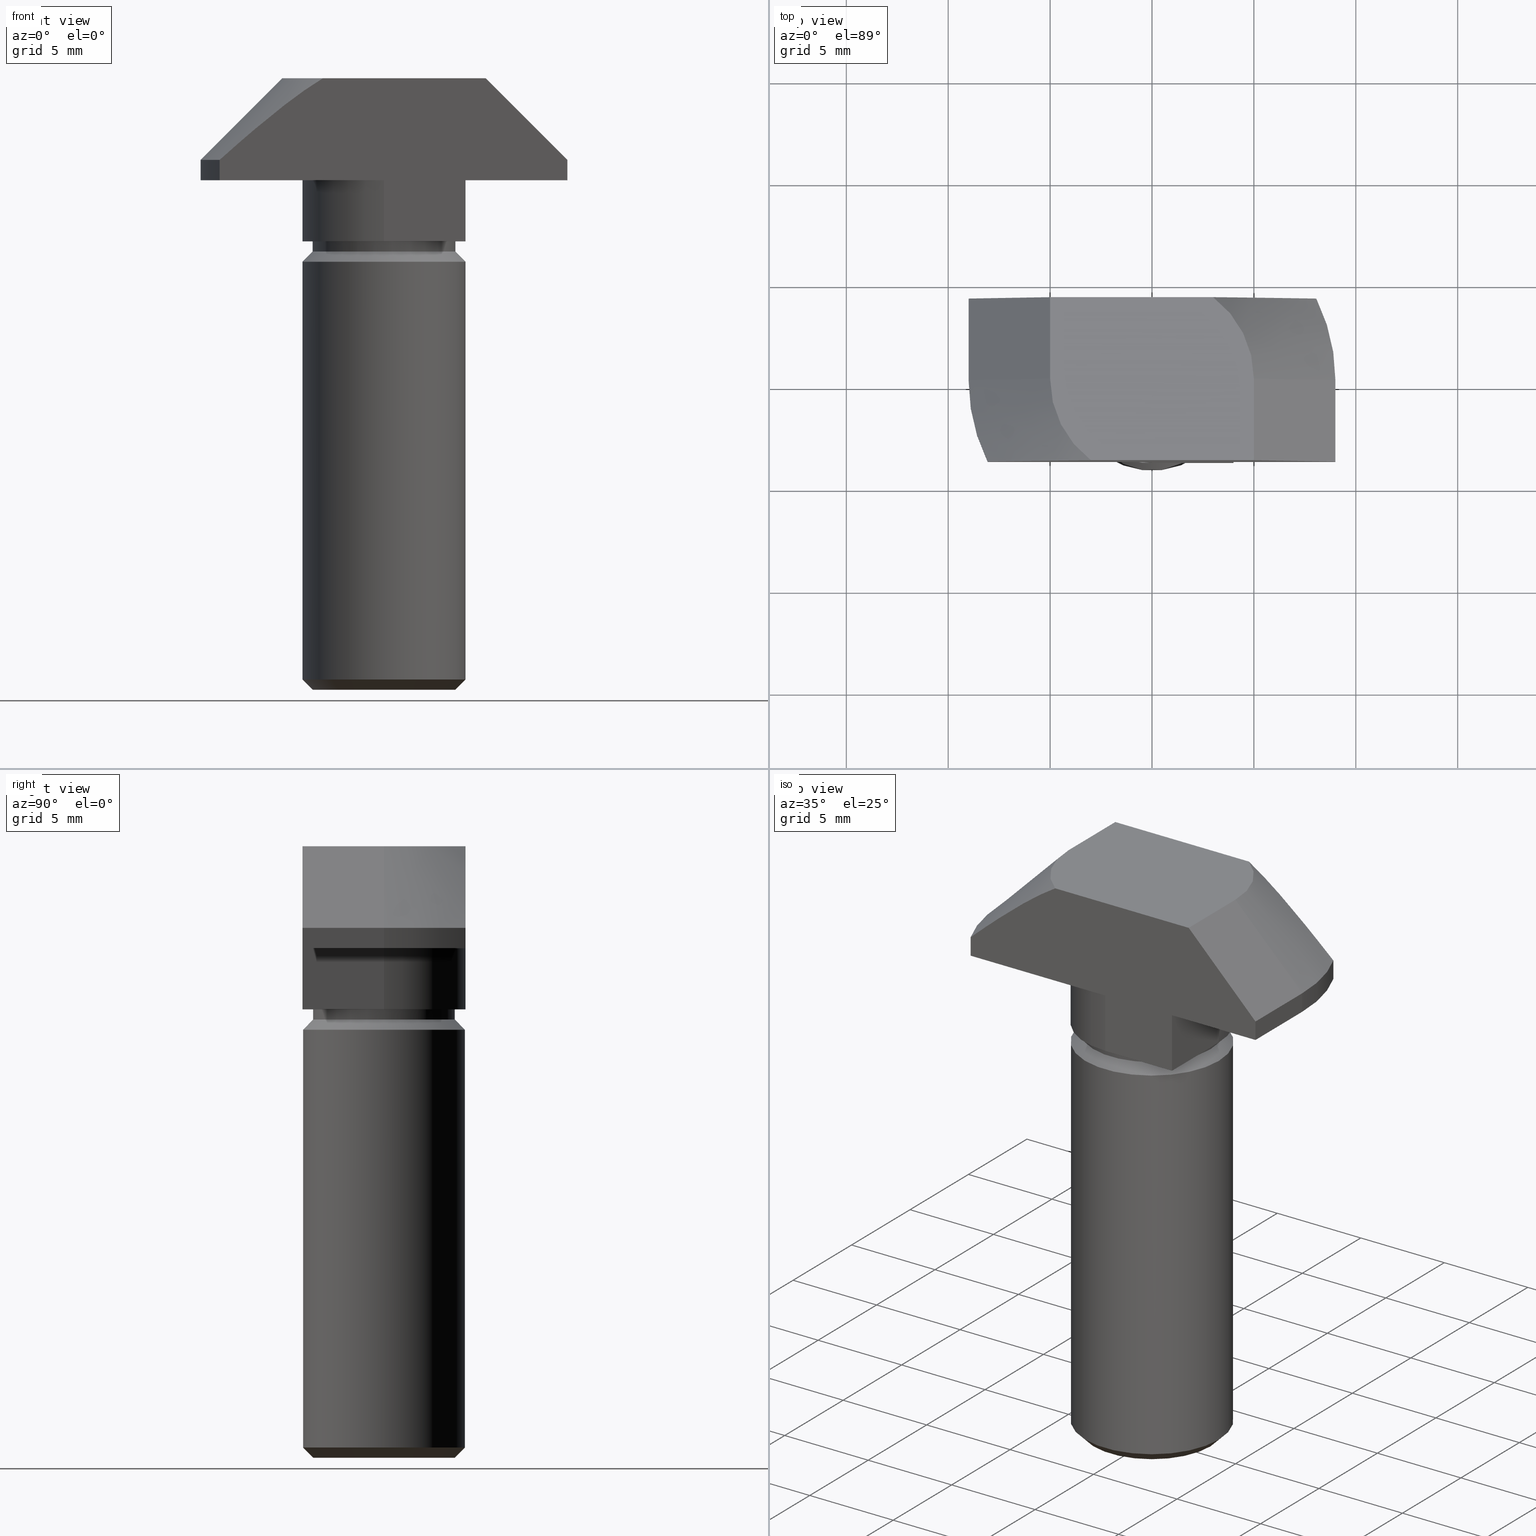
[diagram: canonical four-view strip — front | top / right | iso, engineering-drawing reading convention]
A machine part, canonical four-view strip (front | top / right | iso — engineering-drawing reading convention). The complete STEP part file that produces these views, byte-faithful:
ISO-10303-21;
HEADER;
/* Generated by software containing ST-Developer
 * from STEP Tools, Inc. (www.steptools.com) 
 */

FILE_DESCRIPTION(
/* description */ (''),
/* implementation_level */ '2;1');

FILE_NAME(
/* name */ 
'C:\\Users\\tecnico7\\Desktop\\NUOVI DISEGNI 3D\\VITE M8 L=25 Cava 10.
stp',
/* time_stamp */ '2022-12-02T11:06:05+01:00',
/* author */ ('tecnico7'),
/* organization */ (''),
/* preprocessor_version */ 'ST-DEVELOPER v18.1',
/* originating_system */ 'Autodesk Inventor 2022',
/* authorisation */ '');

FILE_SCHEMA (('AUTOMOTIVE_DESIGN { 1 0 10303 214 3 1 1 }'));
ENDSEC;

DATA;
#10=MECHANICAL_DESIGN_GEOMETRIC_PRESENTATION_REPRESENTATION('',(#13),#700);
#11=SHAPE_REPRESENTATION_RELATIONSHIP('SRR','None',#707,#12);
#12=ADVANCED_BREP_SHAPE_REPRESENTATION('',(#14),#699);
#13=STYLED_ITEM('',(#716),#14);
#14=MANIFOLD_SOLID_BREP('Solido1',#402);
#15=(
BOUNDED_CURVE()
B_SPLINE_CURVE(2,(#651,#652,#653),.UNSPECIFIED.,.F.,.F.)
B_SPLINE_CURVE_WITH_KNOTS((3,3),(0.,0.645810133031387),.UNSPECIFIED.)
CURVE()
GEOMETRIC_REPRESENTATION_ITEM()
RATIONAL_B_SPLINE_CURVE((1.,1.07257323111151,1.))
REPRESENTATION_ITEM('')
);
#16=(
BOUNDED_CURVE()
B_SPLINE_CURVE(2,(#670,#671,#672),.UNSPECIFIED.,.F.,.F.)
B_SPLINE_CURVE_WITH_KNOTS((3,3),(0.,0.645810133031388),.UNSPECIFIED.)
CURVE()
GEOMETRIC_REPRESENTATION_ITEM()
RATIONAL_B_SPLINE_CURVE((1.,1.07257323111155,1.))
REPRESENTATION_ITEM('')
);
#17=FACE_BOUND('',#70,.T.);
#18=PLANE('',#432);
#19=PLANE('',#435);
#20=PLANE('',#439);
#21=PLANE('',#443);
#22=PLANE('',#444);
#23=PLANE('',#446);
#24=PLANE('',#456);
#25=PLANE('',#457);
#26=PLANE('',#458);
#27=PLANE('',#459);
#28=PLANE('',#460);
#29=PLANE('',#461);
#30=PLANE('',#462);
#31=CYLINDRICAL_SURFACE('',#428,4.);
#32=CYLINDRICAL_SURFACE('',#433,3.5);
#33=CYLINDRICAL_SURFACE('',#436,4.00000000000001);
#34=CYLINDRICAL_SURFACE('',#440,3.99999999999999);
#35=CYLINDRICAL_SURFACE('',#451,9.);
#36=CYLINDRICAL_SURFACE('',#452,9.);
#37=FACE_OUTER_BOUND('',#60,.T.);
#38=FACE_OUTER_BOUND('',#61,.T.);
#39=FACE_OUTER_BOUND('',#62,.T.);
#40=FACE_OUTER_BOUND('',#63,.T.);
#41=FACE_OUTER_BOUND('',#64,.T.);
#42=FACE_OUTER_BOUND('',#65,.T.);
#43=FACE_OUTER_BOUND('',#66,.T.);
#44=FACE_OUTER_BOUND('',#67,.T.);
#45=FACE_OUTER_BOUND('',#68,.T.);
#46=FACE_OUTER_BOUND('',#69,.T.);
#47=FACE_OUTER_BOUND('',#71,.T.);
#48=FACE_OUTER_BOUND('',#72,.T.);
#49=FACE_OUTER_BOUND('',#73,.T.);
#50=FACE_OUTER_BOUND('',#74,.T.);
#51=FACE_OUTER_BOUND('',#75,.T.);
#52=FACE_OUTER_BOUND('',#76,.T.);
#53=FACE_OUTER_BOUND('',#77,.T.);
#54=FACE_OUTER_BOUND('',#78,.T.);
#55=FACE_OUTER_BOUND('',#79,.T.);
#56=FACE_OUTER_BOUND('',#80,.T.);
#57=FACE_OUTER_BOUND('',#81,.T.);
#58=FACE_OUTER_BOUND('',#82,.T.);
#59=FACE_OUTER_BOUND('',#83,.T.);
#60=EDGE_LOOP('',(#265,#266,#267,#268));
#61=EDGE_LOOP('',(#269,#270,#271,#272));
#62=EDGE_LOOP('',(#273,#274,#275,#276));
#63=EDGE_LOOP('',(#277));
#64=EDGE_LOOP('',(#278,#279,#280,#281));
#65=EDGE_LOOP('',(#282,#283,#284,#285));
#66=EDGE_LOOP('',(#286,#287,#288,#289));
#67=EDGE_LOOP('',(#290,#291,#292,#293));
#68=EDGE_LOOP('',(#294,#295,#296,#297));
#69=EDGE_LOOP('',(#298,#299,#300,#301,#302,#303));
#70=EDGE_LOOP('',(#304));
#71=EDGE_LOOP('',(#305,#306,#307,#308,#309,#310));
#72=EDGE_LOOP('',(#311,#312,#313,#314,#315,#316));
#73=EDGE_LOOP('',(#317,#318,#319,#320));
#74=EDGE_LOOP('',(#321,#322,#323,#324));
#75=EDGE_LOOP('',(#325,#326,#327,#328));
#76=EDGE_LOOP('',(#329,#330,#331,#332));
#77=EDGE_LOOP('',(#333,#334,#335,#336));
#78=EDGE_LOOP('',(#337,#338,#339,#340));
#79=EDGE_LOOP('',(#341,#342,#343,#344));
#80=EDGE_LOOP('',(#345,#346,#347,#348));
#81=EDGE_LOOP('',(#349,#350,#351,#352,#353,#354,#355,#356,#357,#358));
#82=EDGE_LOOP('',(#359,#360,#361,#362,#363,#364));
#83=EDGE_LOOP('',(#365,#366,#367,#368,#369,#370,#371,#372,#373,#374));
#84=LINE('',#584,#122);
#85=LINE('',#589,#123);
#86=LINE('',#593,#124);
#87=LINE('',#597,#125);
#88=LINE('',#602,#126);
#89=LINE('',#604,#127);
#90=LINE('',#606,#128);
#91=LINE('',#607,#129);
#92=LINE('',#613,#130);
#93=LINE('',#617,#131);
#94=LINE('',#619,#132);
#95=LINE('',#621,#133);
#96=LINE('',#622,#134);
#97=LINE('',#628,#135);
#98=LINE('',#630,#136);
#99=LINE('',#631,#137);
#100=LINE('',#634,#138);
#101=LINE('',#638,#139);
#102=LINE('',#639,#140);
#103=LINE('',#642,#141);
#104=LINE('',#646,#142);
#105=LINE('',#647,#143);
#106=LINE('',#657,#144);
#107=LINE('',#660,#145);
#108=LINE('',#661,#146);
#109=LINE('',#664,#147);
#110=LINE('',#667,#148);
#111=LINE('',#675,#149);
#112=LINE('',#678,#150);
#113=LINE('',#679,#151);
#114=LINE('',#682,#152);
#115=LINE('',#683,#153);
#116=LINE('',#686,#154);
#117=LINE('',#687,#155);
#118=LINE('',#690,#156);
#119=LINE('',#691,#157);
#120=LINE('',#693,#158);
#121=LINE('',#695,#159);
#122=VECTOR('',#469,3.75);
#123=VECTOR('',#476,4.);
#124=VECTOR('',#481,3.75);
#125=VECTOR('',#486,3.5);
#126=VECTOR('',#491,10.);
#127=VECTOR('',#492,10.);
#128=VECTOR('',#493,10.);
#129=VECTOR('',#494,10.);
#130=VECTOR('',#501,10.);
#131=VECTOR('',#504,10.);
#132=VECTOR('',#505,10.);
#133=VECTOR('',#506,10.);
#134=VECTOR('',#507,10.);
#135=VECTOR('',#514,10.);
#136=VECTOR('',#517,10.);
#137=VECTOR('',#518,10.);
#138=VECTOR('',#521,10.);
#139=VECTOR('',#524,10.);
#140=VECTOR('',#525,10.);
#141=VECTOR('',#528,10.);
#142=VECTOR('',#531,10.);
#143=VECTOR('',#532,10.);
#144=VECTOR('',#537,10.);
#145=VECTOR('',#542,10.);
#146=VECTOR('',#543,10.);
#147=VECTOR('',#546,10.);
#148=VECTOR('',#549,10.);
#149=VECTOR('',#554,10.);
#150=VECTOR('',#557,10.);
#151=VECTOR('',#558,10.);
#152=VECTOR('',#561,10.);
#153=VECTOR('',#562,10.);
#154=VECTOR('',#565,10.);
#155=VECTOR('',#566,10.);
#156=VECTOR('',#569,10.);
#157=VECTOR('',#570,10.);
#158=VECTOR('',#573,10.);
#159=VECTOR('',#576,10.);
#160=CIRCLE('',#426,3.5);
#161=CIRCLE('',#427,4.);
#162=CIRCLE('',#429,4.);
#163=CIRCLE('',#431,3.5);
#164=CIRCLE('',#434,3.5);
#165=CIRCLE('',#437,4.00000000000001);
#166=CIRCLE('',#438,4.00000000000001);
#167=CIRCLE('',#441,3.99999999999999);
#168=CIRCLE('',#442,3.99999999999999);
#169=CIRCLE('',#445,9.);
#170=CIRCLE('',#447,9.);
#171=CIRCLE('',#449,5.);
#172=CIRCLE('',#450,9.);
#173=CIRCLE('',#453,9.);
#174=CIRCLE('',#455,5.);
#175=VERTEX_POINT('',#581);
#176=VERTEX_POINT('',#583);
#177=VERTEX_POINT('',#587);
#178=VERTEX_POINT('',#591);
#179=VERTEX_POINT('',#596);
#180=VERTEX_POINT('',#600);
#181=VERTEX_POINT('',#601);
#182=VERTEX_POINT('',#603);
#183=VERTEX_POINT('',#605);
#184=VERTEX_POINT('',#609);
#185=VERTEX_POINT('',#611);
#186=VERTEX_POINT('',#615);
#187=VERTEX_POINT('',#616);
#188=VERTEX_POINT('',#618);
#189=VERTEX_POINT('',#620);
#190=VERTEX_POINT('',#624);
#191=VERTEX_POINT('',#626);
#192=VERTEX_POINT('',#633);
#193=VERTEX_POINT('',#635);
#194=VERTEX_POINT('',#637);
#195=VERTEX_POINT('',#641);
#196=VERTEX_POINT('',#643);
#197=VERTEX_POINT('',#645);
#198=VERTEX_POINT('',#649);
#199=VERTEX_POINT('',#650);
#200=VERTEX_POINT('',#654);
#201=VERTEX_POINT('',#656);
#202=VERTEX_POINT('',#663);
#203=VERTEX_POINT('',#665);
#204=VERTEX_POINT('',#669);
#205=VERTEX_POINT('',#673);
#206=VERTEX_POINT('',#677);
#207=VERTEX_POINT('',#681);
#208=VERTEX_POINT('',#685);
#209=VERTEX_POINT('',#689);
#210=EDGE_CURVE('',#175,#175,#160,.T.);
#211=EDGE_CURVE('',#175,#176,#84,.T.);
#212=EDGE_CURVE('',#176,#176,#161,.T.);
#213=EDGE_CURVE('',#177,#177,#162,.T.);
#214=EDGE_CURVE('',#177,#176,#85,.T.);
#215=EDGE_CURVE('',#178,#178,#163,.T.);
#216=EDGE_CURVE('',#178,#177,#86,.T.);
#217=EDGE_CURVE('',#175,#179,#87,.T.);
#218=EDGE_CURVE('',#179,#179,#164,.T.);
#219=EDGE_CURVE('',#180,#181,#88,.T.);
#220=EDGE_CURVE('',#180,#182,#89,.T.);
#221=EDGE_CURVE('',#183,#182,#90,.T.);
#222=EDGE_CURVE('',#181,#183,#91,.T.);
#223=EDGE_CURVE('',#181,#184,#165,.T.);
#224=EDGE_CURVE('',#185,#183,#166,.T.);
#225=EDGE_CURVE('',#184,#185,#92,.T.);
#226=EDGE_CURVE('',#186,#187,#93,.T.);
#227=EDGE_CURVE('',#186,#188,#94,.T.);
#228=EDGE_CURVE('',#189,#188,#95,.T.);
#229=EDGE_CURVE('',#187,#189,#96,.T.);
#230=EDGE_CURVE('',#187,#190,#167,.T.);
#231=EDGE_CURVE('',#191,#189,#168,.T.);
#232=EDGE_CURVE('',#190,#191,#97,.T.);
#233=EDGE_CURVE('',#182,#191,#98,.T.);
#234=EDGE_CURVE('',#188,#185,#99,.T.);
#235=EDGE_CURVE('',#192,#184,#100,.T.);
#236=EDGE_CURVE('',#192,#193,#169,.T.);
#237=EDGE_CURVE('',#193,#194,#101,.T.);
#238=EDGE_CURVE('',#180,#194,#102,.T.);
#239=EDGE_CURVE('',#195,#190,#103,.T.);
#240=EDGE_CURVE('',#195,#196,#170,.T.);
#241=EDGE_CURVE('',#196,#197,#104,.T.);
#242=EDGE_CURVE('',#186,#197,#105,.T.);
#243=EDGE_CURVE('',#198,#199,#15,.T.);
#244=EDGE_CURVE('',#200,#198,#171,.T.);
#245=EDGE_CURVE('',#200,#201,#106,.T.);
#246=EDGE_CURVE('',#201,#199,#172,.T.);
#247=EDGE_CURVE('',#199,#195,#107,.T.);
#248=EDGE_CURVE('',#201,#196,#108,.T.);
#249=EDGE_CURVE('',#202,#192,#109,.T.);
#250=EDGE_CURVE('',#203,#202,#173,.T.);
#251=EDGE_CURVE('',#203,#193,#110,.T.);
#252=EDGE_CURVE('',#204,#202,#16,.T.);
#253=EDGE_CURVE('',#205,#204,#174,.T.);
#254=EDGE_CURVE('',#205,#203,#111,.T.);
#255=EDGE_CURVE('',#201,#206,#112,.T.);
#256=EDGE_CURVE('',#197,#206,#113,.T.);
#257=EDGE_CURVE('',#200,#207,#114,.T.);
#258=EDGE_CURVE('',#206,#207,#115,.T.);
#259=EDGE_CURVE('',#208,#203,#116,.T.);
#260=EDGE_CURVE('',#194,#208,#117,.T.);
#261=EDGE_CURVE('',#209,#205,#118,.T.);
#262=EDGE_CURVE('',#208,#209,#119,.T.);
#263=EDGE_CURVE('',#207,#204,#120,.T.);
#264=EDGE_CURVE('',#209,#198,#121,.T.);
#265=ORIENTED_EDGE('',*,*,#210,.T.);
#266=ORIENTED_EDGE('',*,*,#211,.T.);
#267=ORIENTED_EDGE('',*,*,#212,.T.);
#268=ORIENTED_EDGE('',*,*,#211,.F.);
#269=ORIENTED_EDGE('',*,*,#213,.F.);
#270=ORIENTED_EDGE('',*,*,#214,.T.);
#271=ORIENTED_EDGE('',*,*,#212,.F.);
#272=ORIENTED_EDGE('',*,*,#214,.F.);
#273=ORIENTED_EDGE('',*,*,#215,.T.);
#274=ORIENTED_EDGE('',*,*,#216,.T.);
#275=ORIENTED_EDGE('',*,*,#213,.T.);
#276=ORIENTED_EDGE('',*,*,#216,.F.);
#277=ORIENTED_EDGE('',*,*,#215,.F.);
#278=ORIENTED_EDGE('',*,*,#210,.F.);
#279=ORIENTED_EDGE('',*,*,#217,.T.);
#280=ORIENTED_EDGE('',*,*,#218,.F.);
#281=ORIENTED_EDGE('',*,*,#217,.F.);
#282=ORIENTED_EDGE('',*,*,#219,.F.);
#283=ORIENTED_EDGE('',*,*,#220,.T.);
#284=ORIENTED_EDGE('',*,*,#221,.F.);
#285=ORIENTED_EDGE('',*,*,#222,.F.);
#286=ORIENTED_EDGE('',*,*,#223,.F.);
#287=ORIENTED_EDGE('',*,*,#222,.T.);
#288=ORIENTED_EDGE('',*,*,#224,.F.);
#289=ORIENTED_EDGE('',*,*,#225,.F.);
#290=ORIENTED_EDGE('',*,*,#226,.F.);
#291=ORIENTED_EDGE('',*,*,#227,.T.);
#292=ORIENTED_EDGE('',*,*,#228,.F.);
#293=ORIENTED_EDGE('',*,*,#229,.F.);
#294=ORIENTED_EDGE('',*,*,#230,.F.);
#295=ORIENTED_EDGE('',*,*,#229,.T.);
#296=ORIENTED_EDGE('',*,*,#231,.F.);
#297=ORIENTED_EDGE('',*,*,#232,.F.);
#298=ORIENTED_EDGE('',*,*,#233,.T.);
#299=ORIENTED_EDGE('',*,*,#231,.T.);
#300=ORIENTED_EDGE('',*,*,#228,.T.);
#301=ORIENTED_EDGE('',*,*,#234,.T.);
#302=ORIENTED_EDGE('',*,*,#224,.T.);
#303=ORIENTED_EDGE('',*,*,#221,.T.);
#304=ORIENTED_EDGE('',*,*,#218,.T.);
#305=ORIENTED_EDGE('',*,*,#223,.T.);
#306=ORIENTED_EDGE('',*,*,#235,.F.);
#307=ORIENTED_EDGE('',*,*,#236,.T.);
#308=ORIENTED_EDGE('',*,*,#237,.T.);
#309=ORIENTED_EDGE('',*,*,#238,.F.);
#310=ORIENTED_EDGE('',*,*,#219,.T.);
#311=ORIENTED_EDGE('',*,*,#226,.T.);
#312=ORIENTED_EDGE('',*,*,#230,.T.);
#313=ORIENTED_EDGE('',*,*,#239,.F.);
#314=ORIENTED_EDGE('',*,*,#240,.T.);
#315=ORIENTED_EDGE('',*,*,#241,.T.);
#316=ORIENTED_EDGE('',*,*,#242,.F.);
#317=ORIENTED_EDGE('',*,*,#243,.F.);
#318=ORIENTED_EDGE('',*,*,#244,.F.);
#319=ORIENTED_EDGE('',*,*,#245,.T.);
#320=ORIENTED_EDGE('',*,*,#246,.T.);
#321=ORIENTED_EDGE('',*,*,#247,.F.);
#322=ORIENTED_EDGE('',*,*,#246,.F.);
#323=ORIENTED_EDGE('',*,*,#248,.T.);
#324=ORIENTED_EDGE('',*,*,#240,.F.);
#325=ORIENTED_EDGE('',*,*,#249,.F.);
#326=ORIENTED_EDGE('',*,*,#250,.F.);
#327=ORIENTED_EDGE('',*,*,#251,.T.);
#328=ORIENTED_EDGE('',*,*,#236,.F.);
#329=ORIENTED_EDGE('',*,*,#252,.F.);
#330=ORIENTED_EDGE('',*,*,#253,.F.);
#331=ORIENTED_EDGE('',*,*,#254,.T.);
#332=ORIENTED_EDGE('',*,*,#250,.T.);
#333=ORIENTED_EDGE('',*,*,#248,.F.);
#334=ORIENTED_EDGE('',*,*,#255,.T.);
#335=ORIENTED_EDGE('',*,*,#256,.F.);
#336=ORIENTED_EDGE('',*,*,#241,.F.);
#337=ORIENTED_EDGE('',*,*,#245,.F.);
#338=ORIENTED_EDGE('',*,*,#257,.T.);
#339=ORIENTED_EDGE('',*,*,#258,.F.);
#340=ORIENTED_EDGE('',*,*,#255,.F.);
#341=ORIENTED_EDGE('',*,*,#251,.F.);
#342=ORIENTED_EDGE('',*,*,#259,.F.);
#343=ORIENTED_EDGE('',*,*,#260,.F.);
#344=ORIENTED_EDGE('',*,*,#237,.F.);
#345=ORIENTED_EDGE('',*,*,#254,.F.);
#346=ORIENTED_EDGE('',*,*,#261,.F.);
#347=ORIENTED_EDGE('',*,*,#262,.F.);
#348=ORIENTED_EDGE('',*,*,#259,.T.);
#349=ORIENTED_EDGE('',*,*,#249,.T.);
#350=ORIENTED_EDGE('',*,*,#235,.T.);
#351=ORIENTED_EDGE('',*,*,#225,.T.);
#352=ORIENTED_EDGE('',*,*,#234,.F.);
#353=ORIENTED_EDGE('',*,*,#227,.F.);
#354=ORIENTED_EDGE('',*,*,#242,.T.);
#355=ORIENTED_EDGE('',*,*,#256,.T.);
#356=ORIENTED_EDGE('',*,*,#258,.T.);
#357=ORIENTED_EDGE('',*,*,#263,.T.);
#358=ORIENTED_EDGE('',*,*,#252,.T.);
#359=ORIENTED_EDGE('',*,*,#244,.T.);
#360=ORIENTED_EDGE('',*,*,#264,.F.);
#361=ORIENTED_EDGE('',*,*,#261,.T.);
#362=ORIENTED_EDGE('',*,*,#253,.T.);
#363=ORIENTED_EDGE('',*,*,#263,.F.);
#364=ORIENTED_EDGE('',*,*,#257,.F.);
#365=ORIENTED_EDGE('',*,*,#247,.T.);
#366=ORIENTED_EDGE('',*,*,#239,.T.);
#367=ORIENTED_EDGE('',*,*,#232,.T.);
#368=ORIENTED_EDGE('',*,*,#233,.F.);
#369=ORIENTED_EDGE('',*,*,#220,.F.);
#370=ORIENTED_EDGE('',*,*,#238,.T.);
#371=ORIENTED_EDGE('',*,*,#260,.T.);
#372=ORIENTED_EDGE('',*,*,#262,.T.);
#373=ORIENTED_EDGE('',*,*,#264,.T.);
#374=ORIENTED_EDGE('',*,*,#243,.T.);
#375=CONICAL_SURFACE('',#425,3.75,0.785398163397448);
#376=CONICAL_SURFACE('',#430,3.75,0.78539816339745);
#377=CONICAL_SURFACE('',#448,7.,0.785398163397448);
#378=CONICAL_SURFACE('',#454,7.,0.785398163397448);
#379=ADVANCED_FACE('',(#37),#375,.T.);
#380=ADVANCED_FACE('',(#38),#31,.T.);
#381=ADVANCED_FACE('',(#39),#376,.T.);
#382=ADVANCED_FACE('',(#40),#18,.F.);
#383=ADVANCED_FACE('',(#41),#32,.T.);
#384=ADVANCED_FACE('',(#42),#19,.T.);
#385=ADVANCED_FACE('',(#43),#33,.T.);
#386=ADVANCED_FACE('',(#44),#20,.T.);
#387=ADVANCED_FACE('',(#45),#34,.T.);
#388=ADVANCED_FACE('',(#46,#17),#21,.F.);
#389=ADVANCED_FACE('',(#47),#22,.T.);
#390=ADVANCED_FACE('',(#48),#23,.T.);
#391=ADVANCED_FACE('',(#49),#377,.T.);
#392=ADVANCED_FACE('',(#50),#35,.T.);
#393=ADVANCED_FACE('',(#51),#36,.T.);
#394=ADVANCED_FACE('',(#52),#378,.T.);
#395=ADVANCED_FACE('',(#53),#24,.T.);
#396=ADVANCED_FACE('',(#54),#25,.T.);
#397=ADVANCED_FACE('',(#55),#26,.T.);
#398=ADVANCED_FACE('',(#56),#27,.T.);
#399=ADVANCED_FACE('',(#57),#28,.T.);
#400=ADVANCED_FACE('',(#58),#29,.T.);
#401=ADVANCED_FACE('',(#59),#30,.T.);
#402=CLOSED_SHELL('',(#379,#380,#381,#382,#383,#384,#385,#386,#387,#388,
#389,#390,#391,#392,#393,#394,#395,#396,#397,#398,#399,#400,#401));
#403=DERIVED_UNIT_ELEMENT(#406,1.);
#404=DERIVED_UNIT_ELEMENT(#702,-3.);
#405=DIMENSIONAL_EXPONENTS(1.,0.,0.,0.,0.,0.,0.);
#406=(
CONVERSION_BASED_UNIT('gram',#408)
MASS_UNIT()
NAMED_UNIT(#405)
);
#407=(
MASS_UNIT()
NAMED_UNIT(*)
SI_UNIT(.KILO.,.GRAM.)
);
#408=MASS_MEASURE_WITH_UNIT(MASS_MEASURE(0.001),#407);
#409=DERIVED_UNIT((#403,#404));
#410=MEASURE_REPRESENTATION_ITEM('density measure',
POSITIVE_RATIO_MEASURE(7.85),#409);
#411=PROPERTY_DEFINITION_REPRESENTATION(#416,#413);
#412=PROPERTY_DEFINITION_REPRESENTATION(#417,#414);
#413=REPRESENTATION('material name',(#415),#699);
#414=REPRESENTATION('density',(#410),#699);
#415=DESCRIPTIVE_REPRESENTATION_ITEM('Acciaio S235JR','Acciaio S235JR');
#416=PROPERTY_DEFINITION('material property','material name',#709);
#417=PROPERTY_DEFINITION('material property','density of part',#709);
#418=DATE_TIME_ROLE('creation_date');
#419=APPLIED_DATE_AND_TIME_ASSIGNMENT(#420,#418,(#709));
#420=DATE_AND_TIME(#421,#422);
#421=CALENDAR_DATE(2018,4,12);
#422=LOCAL_TIME(0,0,0.,#423);
#423=COORDINATED_UNIVERSAL_TIME_OFFSET(0,0,.BEHIND.);
#424=AXIS2_PLACEMENT_3D('placement',#579,#463,#464);
#425=AXIS2_PLACEMENT_3D('',#580,#465,#466);
#426=AXIS2_PLACEMENT_3D('',#582,#467,#468);
#427=AXIS2_PLACEMENT_3D('',#585,#470,#471);
#428=AXIS2_PLACEMENT_3D('',#586,#472,#473);
#429=AXIS2_PLACEMENT_3D('',#588,#474,#475);
#430=AXIS2_PLACEMENT_3D('',#590,#477,#478);
#431=AXIS2_PLACEMENT_3D('',#592,#479,#480);
#432=AXIS2_PLACEMENT_3D('',#594,#482,#483);
#433=AXIS2_PLACEMENT_3D('',#595,#484,#485);
#434=AXIS2_PLACEMENT_3D('',#598,#487,#488);
#435=AXIS2_PLACEMENT_3D('',#599,#489,#490);
#436=AXIS2_PLACEMENT_3D('',#608,#495,#496);
#437=AXIS2_PLACEMENT_3D('',#610,#497,#498);
#438=AXIS2_PLACEMENT_3D('',#612,#499,#500);
#439=AXIS2_PLACEMENT_3D('',#614,#502,#503);
#440=AXIS2_PLACEMENT_3D('',#623,#508,#509);
#441=AXIS2_PLACEMENT_3D('',#625,#510,#511);
#442=AXIS2_PLACEMENT_3D('',#627,#512,#513);
#443=AXIS2_PLACEMENT_3D('',#629,#515,#516);
#444=AXIS2_PLACEMENT_3D('',#632,#519,#520);
#445=AXIS2_PLACEMENT_3D('',#636,#522,#523);
#446=AXIS2_PLACEMENT_3D('',#640,#526,#527);
#447=AXIS2_PLACEMENT_3D('',#644,#529,#530);
#448=AXIS2_PLACEMENT_3D('',#648,#533,#534);
#449=AXIS2_PLACEMENT_3D('',#655,#535,#536);
#450=AXIS2_PLACEMENT_3D('',#658,#538,#539);
#451=AXIS2_PLACEMENT_3D('',#659,#540,#541);
#452=AXIS2_PLACEMENT_3D('',#662,#544,#545);
#453=AXIS2_PLACEMENT_3D('',#666,#547,#548);
#454=AXIS2_PLACEMENT_3D('',#668,#550,#551);
#455=AXIS2_PLACEMENT_3D('',#674,#552,#553);
#456=AXIS2_PLACEMENT_3D('',#676,#555,#556);
#457=AXIS2_PLACEMENT_3D('',#680,#559,#560);
#458=AXIS2_PLACEMENT_3D('',#684,#563,#564);
#459=AXIS2_PLACEMENT_3D('',#688,#567,#568);
#460=AXIS2_PLACEMENT_3D('',#692,#571,#572);
#461=AXIS2_PLACEMENT_3D('',#694,#574,#575);
#462=AXIS2_PLACEMENT_3D('',#696,#577,#578);
#463=DIRECTION('axis',(0.,0.,1.));
#464=DIRECTION('refdir',(1.,0.,0.));
#465=DIRECTION('center_axis',(0.,0.,-1.));
#466=DIRECTION('ref_axis',(1.,0.,0.));
#467=DIRECTION('center_axis',(0.,0.,-1.));
#468=DIRECTION('ref_axis',(1.,0.,0.));
#469=DIRECTION('',(-0.707106781186547,-8.65956056235493E-17,-0.707106781186548));
#470=DIRECTION('center_axis',(0.,0.,1.));
#471=DIRECTION('ref_axis',(1.,0.,0.));
#472=DIRECTION('center_axis',(0.,0.,-1.));
#473=DIRECTION('ref_axis',(1.,0.,0.));
#474=DIRECTION('center_axis',(0.,0.,-1.));
#475=DIRECTION('ref_axis',(1.,0.,0.));
#476=DIRECTION('',(0.,0.,1.));
#477=DIRECTION('center_axis',(0.,0.,1.));
#478=DIRECTION('ref_axis',(1.,0.,0.));
#479=DIRECTION('center_axis',(0.,0.,1.));
#480=DIRECTION('ref_axis',(1.,0.,0.));
#481=DIRECTION('',(-0.707106781186549,8.65956056235495E-17,0.707106781186546));
#482=DIRECTION('center_axis',(0.,0.,1.));
#483=DIRECTION('ref_axis',(1.,0.,0.));
#484=DIRECTION('center_axis',(0.,0.,-1.));
#485=DIRECTION('ref_axis',(1.,0.,0.));
#486=DIRECTION('',(0.,0.,1.));
#487=DIRECTION('center_axis',(0.,0.,1.));
#488=DIRECTION('ref_axis',(1.,0.,0.));
#489=DIRECTION('center_axis',(-1.,0.,0.));
#490=DIRECTION('ref_axis',(0.,1.,0.));
#491=DIRECTION('',(0.,-1.,0.));
#492=DIRECTION('',(0.,0.,-1.));
#493=DIRECTION('',(0.,1.,0.));
#494=DIRECTION('',(0.,0.,-1.));
#495=DIRECTION('center_axis',(0.,0.,-1.));
#496=DIRECTION('ref_axis',(2.7755575615629E-16,1.,0.));
#497=DIRECTION('center_axis',(0.,0.,1.));
#498=DIRECTION('ref_axis',(2.7755575615629E-16,1.,0.));
#499=DIRECTION('center_axis',(0.,0.,-1.));
#500=DIRECTION('ref_axis',(2.7755575615629E-16,1.,0.));
#501=DIRECTION('',(0.,0.,-1.));
#502=DIRECTION('center_axis',(1.,0.,0.));
#503=DIRECTION('ref_axis',(0.,-1.,0.));
#504=DIRECTION('',(0.,1.,0.));
#505=DIRECTION('',(0.,0.,-1.));
#506=DIRECTION('',(0.,-1.,0.));
#507=DIRECTION('',(0.,0.,-1.));
#508=DIRECTION('center_axis',(0.,0.,-1.));
#509=DIRECTION('ref_axis',(0.,-1.,0.));
#510=DIRECTION('center_axis',(0.,0.,1.));
#511=DIRECTION('ref_axis',(0.,-1.,0.));
#512=DIRECTION('center_axis',(0.,0.,-1.));
#513=DIRECTION('ref_axis',(0.,-1.,0.));
#514=DIRECTION('',(0.,0.,-1.));
#515=DIRECTION('center_axis',(0.,0.,1.));
#516=DIRECTION('ref_axis',(1.,0.,0.));
#517=DIRECTION('',(1.,0.,0.));
#518=DIRECTION('',(-1.,3.06161699786838E-16,0.));
#519=DIRECTION('center_axis',(0.,0.,-1.));
#520=DIRECTION('ref_axis',(-1.,0.,0.));
#521=DIRECTION('',(1.,0.,0.));
#522=DIRECTION('center_axis',(0.,0.,-1.));
#523=DIRECTION('ref_axis',(-1.,0.,0.));
#524=DIRECTION('',(0.,1.,0.));
#525=DIRECTION('',(-1.,0.,0.));
#526=DIRECTION('center_axis',(0.,0.,-1.));
#527=DIRECTION('ref_axis',(-1.,0.,0.));
#528=DIRECTION('',(-1.,0.,0.));
#529=DIRECTION('center_axis',(0.,0.,-1.));
#530=DIRECTION('ref_axis',(1.,0.,0.));
#531=DIRECTION('',(0.,-1.,0.));
#532=DIRECTION('',(1.,0.,0.));
#533=DIRECTION('center_axis',(0.,0.,-1.));
#534=DIRECTION('ref_axis',(1.,0.,0.));
#535=DIRECTION('center_axis',(2.04289535270664E-17,0.,1.));
#536=DIRECTION('ref_axis',(1.,0.,0.));
#537=DIRECTION('',(0.707106781186547,0.,-0.707106781186548));
#538=DIRECTION('center_axis',(2.9781283147877E-16,2.9781283147877E-16,1.));
#539=DIRECTION('ref_axis',(1.,1.2335811384724E-16,-3.08395284618099E-16));
#540=DIRECTION('center_axis',(0.,0.,1.));
#541=DIRECTION('ref_axis',(1.,0.,0.));
#542=DIRECTION('',(0.,0.,-1.));
#543=DIRECTION('',(0.,0.,-1.));
#544=DIRECTION('center_axis',(0.,0.,1.));
#545=DIRECTION('ref_axis',(-1.,0.,0.));
#546=DIRECTION('',(0.,0.,-1.));
#547=DIRECTION('center_axis',(-1.48906415739385E-16,-1.48906415739385E-16,
1.));
#548=DIRECTION('ref_axis',(-1.,-1.2335811384724E-16,-1.2335811384724E-16));
#549=DIRECTION('',(0.,0.,-1.));
#550=DIRECTION('center_axis',(0.,0.,-1.));
#551=DIRECTION('ref_axis',(-1.,0.,0.));
#552=DIRECTION('center_axis',(2.04289535270664E-17,0.,1.));
#553=DIRECTION('ref_axis',(-1.,0.,0.));
#554=DIRECTION('',(-0.707106781186548,0.,-0.707106781186548));
#555=DIRECTION('center_axis',(1.,0.,0.));
#556=DIRECTION('ref_axis',(0.,0.,-1.));
#557=DIRECTION('',(0.,-1.,0.));
#558=DIRECTION('',(0.,0.,1.));
#559=DIRECTION('center_axis',(0.707106781186548,0.,0.707106781186547));
#560=DIRECTION('ref_axis',(0.707106781186547,0.,-0.707106781186548));
#561=DIRECTION('',(0.,-1.,0.));
#562=DIRECTION('',(-0.707106781186547,0.,0.707106781186548));
#563=DIRECTION('center_axis',(-1.,0.,0.));
#564=DIRECTION('ref_axis',(0.,0.,1.));
#565=DIRECTION('',(0.,-1.,0.));
#566=DIRECTION('',(0.,0.,1.));
#567=DIRECTION('center_axis',(-0.707106781186548,0.,0.707106781186548));
#568=DIRECTION('ref_axis',(0.707106781186548,0.,0.707106781186548));
#569=DIRECTION('',(0.,-1.,0.));
#570=DIRECTION('',(0.707106781186548,0.,0.707106781186548));
#571=DIRECTION('center_axis',(0.,-1.,0.));
#572=DIRECTION('ref_axis',(0.,0.,-1.));
#573=DIRECTION('',(-1.,0.,2.04289535270664E-17));
#574=DIRECTION('center_axis',(2.04289535270664E-17,0.,1.));
#575=DIRECTION('ref_axis',(1.,0.,-2.04289535270664E-17));
#576=DIRECTION('',(1.,0.,-2.04289535270664E-17));
#577=DIRECTION('center_axis',(0.,1.,0.));
#578=DIRECTION('ref_axis',(0.,0.,1.));
#579=CARTESIAN_POINT('',(0.,0.,0.));
#580=CARTESIAN_POINT('Origin',(0.,0.,-8.75));
#581=CARTESIAN_POINT('',(-3.5,4.28626379701574E-16,-8.5));
#582=CARTESIAN_POINT('Origin',(0.,0.,-8.5));
#583=CARTESIAN_POINT('',(-4.,-4.89858719658941E-16,-9.));
#584=CARTESIAN_POINT('',(-3.75,-4.59242549680257E-16,-8.75));
#585=CARTESIAN_POINT('Origin',(0.,0.,-9.));
#586=CARTESIAN_POINT('Origin',(0.,0.,-8.5));
#587=CARTESIAN_POINT('',(-4.,4.89858719658941E-16,-29.5));
#588=CARTESIAN_POINT('Origin',(0.,0.,-29.5));
#589=CARTESIAN_POINT('',(-4.,4.89858719658941E-16,-8.5));
#590=CARTESIAN_POINT('Origin',(0.,0.,-29.75));
#591=CARTESIAN_POINT('',(-3.5,-4.28626379701574E-16,-30.));
#592=CARTESIAN_POINT('Origin',(0.,0.,-30.));
#593=CARTESIAN_POINT('',(-3.75,4.59242549680257E-16,-29.75));
#594=CARTESIAN_POINT('Origin',(3.8776625516694E-16,-5.78241158658936E-17,
-30.));
#595=CARTESIAN_POINT('Origin',(0.,0.,-8.));
#596=CARTESIAN_POINT('',(-3.5,4.28626379701574E-16,-8.));
#597=CARTESIAN_POINT('',(-3.5,4.28626379701574E-16,-8.));
#598=CARTESIAN_POINT('Origin',(0.,0.,-8.));
#599=CARTESIAN_POINT('Origin',(-3.99999999999999,-1.4432899320127E-14,-5.));
#600=CARTESIAN_POINT('',(-3.99999999999999,3.99999999999998,-5.));
#601=CARTESIAN_POINT('',(-3.99999999999999,-1.4432899320127E-14,-5.));
#602=CARTESIAN_POINT('',(-3.99999999999999,-7.21644966006352E-15,-5.));
#603=CARTESIAN_POINT('',(-3.99999999999999,3.99999999999998,-8.));
#604=CARTESIAN_POINT('',(-3.99999999999999,3.99999999999998,-5.));
#605=CARTESIAN_POINT('',(-3.99999999999999,-1.4432899320127E-14,-8.));
#606=CARTESIAN_POINT('',(-3.99999999999999,3.99999999999998,-8.));
#607=CARTESIAN_POINT('',(-3.99999999999999,-1.4432899320127E-14,-5.));
#608=CARTESIAN_POINT('Origin',(1.11022302462516E-15,-1.33226762955019E-14,
-5.));
#609=CARTESIAN_POINT('',(0.,-4.00000000000001,-5.));
#610=CARTESIAN_POINT('Origin',(1.11022302462516E-15,-1.33226762955019E-14,
-5.));
#611=CARTESIAN_POINT('',(0.,-4.00000000000001,-8.));
#612=CARTESIAN_POINT('Origin',(1.11022302462516E-15,-1.33226762955019E-14,
-8.));
#613=CARTESIAN_POINT('',(0.,-4.00000000000001,-5.));
#614=CARTESIAN_POINT('Origin',(3.99999999999999,-1.49880108324396E-14,-5.));
#615=CARTESIAN_POINT('',(3.99999999999999,-4.00000000000001,-5.));
#616=CARTESIAN_POINT('',(3.99999999999999,-1.49880108324396E-14,-5.));
#617=CARTESIAN_POINT('',(3.99999999999999,-7.49400541621981E-15,-5.));
#618=CARTESIAN_POINT('',(3.99999999999999,-4.00000000000001,-8.));
#619=CARTESIAN_POINT('',(3.99999999999999,-4.00000000000001,-5.));
#620=CARTESIAN_POINT('',(3.99999999999999,-1.49880108324396E-14,-8.));
#621=CARTESIAN_POINT('',(3.99999999999999,-4.00000000000001,-8.));
#622=CARTESIAN_POINT('',(3.99999999999999,-1.49880108324396E-14,-5.));
#623=CARTESIAN_POINT('Origin',(0.,0.,-5.));
#624=CARTESIAN_POINT('',(0.,3.99999999999998,-5.));
#625=CARTESIAN_POINT('Origin',(0.,0.,-5.));
#626=CARTESIAN_POINT('',(0.,3.99999999999998,-8.));
#627=CARTESIAN_POINT('Origin',(0.,0.,-8.));
#628=CARTESIAN_POINT('',(0.,3.99999999999998,-5.));
#629=CARTESIAN_POINT('Origin',(-2.94752049665217E-15,-1.61294871622355E-14,
-8.));
#630=CARTESIAN_POINT('',(0.,3.99999999999998,-8.));
#631=CARTESIAN_POINT('',(0.,-4.00000000000001,-8.));
#632=CARTESIAN_POINT('Origin',(9.,0.,-5.));
#633=CARTESIAN_POINT('',(-8.06225774829855,-4.,-5.));
#634=CARTESIAN_POINT('',(-9.,-4.,-5.));
#635=CARTESIAN_POINT('',(-9.,0.,-5.));
#636=CARTESIAN_POINT('Origin',(0.,0.,-5.));
#637=CARTESIAN_POINT('',(-9.,4.,-5.));
#638=CARTESIAN_POINT('',(-9.,0.,-5.));
#639=CARTESIAN_POINT('',(-9.,4.,-5.));
#640=CARTESIAN_POINT('Origin',(9.,0.,-5.));
#641=CARTESIAN_POINT('',(8.06225774829855,4.,-5.));
#642=CARTESIAN_POINT('',(-9.,4.,-5.));
#643=CARTESIAN_POINT('',(9.,0.,-5.));
#644=CARTESIAN_POINT('Origin',(0.,0.,-5.));
#645=CARTESIAN_POINT('',(9.,-4.,-5.));
#646=CARTESIAN_POINT('',(9.,0.,-5.));
#647=CARTESIAN_POINT('',(-9.,-4.,-5.));
#648=CARTESIAN_POINT('Origin',(0.,0.,-2.));
#649=CARTESIAN_POINT('',(3.,4.,0.));
#650=CARTESIAN_POINT('',(8.06225774829855,4.,-4.));
#651=CARTESIAN_POINT('Ctrl Pts',(3.,4.,-2.77555756156289E-16));
#652=CARTESIAN_POINT('Ctrl Pts',(4.80794919582092,4.,-1.08476951749255));
#653=CARTESIAN_POINT('Ctrl Pts',(8.06225774829855,4.,-4.));
#654=CARTESIAN_POINT('',(5.,0.,0.));
#655=CARTESIAN_POINT('Origin',(0.,0.,2.77555756156289E-16));
#656=CARTESIAN_POINT('',(9.,0.,-4.));
#657=CARTESIAN_POINT('',(7.,0.,-2.));
#658=CARTESIAN_POINT('Origin',(-1.11022302462516E-15,-1.11022302462516E-15,
-4.));
#659=CARTESIAN_POINT('Origin',(0.,0.,-4.5));
#660=CARTESIAN_POINT('',(8.06225774829855,4.,-4.5));
#661=CARTESIAN_POINT('',(9.,0.,-4.5));
#662=CARTESIAN_POINT('Origin',(0.,0.,-4.5));
#663=CARTESIAN_POINT('',(-8.06225774829855,-4.,-4.));
#664=CARTESIAN_POINT('',(-8.06225774829855,-4.,-4.5));
#665=CARTESIAN_POINT('',(-9.,0.,-4.));
#666=CARTESIAN_POINT('Origin',(1.11022302462516E-15,1.11022302462516E-15,
-4.));
#667=CARTESIAN_POINT('',(-9.,0.,-4.5));
#668=CARTESIAN_POINT('Origin',(0.,0.,-2.));
#669=CARTESIAN_POINT('',(-3.,-4.,3.92523114670944E-16));
#670=CARTESIAN_POINT('Ctrl Pts',(-3.,-4.,2.77555756156289E-16));
#671=CARTESIAN_POINT('Ctrl Pts',(-4.80794919582092,-4.,-1.08476951749255));
#672=CARTESIAN_POINT('Ctrl Pts',(-8.06225774829855,-4.,-4.));
#673=CARTESIAN_POINT('',(-5.,0.,0.));
#674=CARTESIAN_POINT('Origin',(0.,0.,2.77555756156289E-16));
#675=CARTESIAN_POINT('',(-7.,0.,-2.));
#676=CARTESIAN_POINT('Origin',(9.,0.,-4.));
#677=CARTESIAN_POINT('',(9.,-4.,-4.));
#678=CARTESIAN_POINT('',(9.,0.,-4.));
#679=CARTESIAN_POINT('',(9.,-4.,-5.));
#680=CARTESIAN_POINT('Origin',(5.,0.,0.));
#681=CARTESIAN_POINT('',(5.,-4.,0.));
#682=CARTESIAN_POINT('',(5.,0.,1.96261524244674E-16));
#683=CARTESIAN_POINT('',(9.,-4.,-4.));
#684=CARTESIAN_POINT('Origin',(-9.,0.,-5.));
#685=CARTESIAN_POINT('',(-9.,4.,-4.));
#686=CARTESIAN_POINT('',(-9.,0.,-4.));
#687=CARTESIAN_POINT('',(-9.,4.,-4.));
#688=CARTESIAN_POINT('Origin',(-9.,0.,-4.));
#689=CARTESIAN_POINT('',(-5.,4.,0.));
#690=CARTESIAN_POINT('',(-5.,0.,4.00551059515339E-16));
#691=CARTESIAN_POINT('',(-5.,4.,4.00551059515339E-16));
#692=CARTESIAN_POINT('Origin',(0.,-4.,-2.94399659137253));
#693=CARTESIAN_POINT('',(5.,-4.,1.96261524244674E-16));
#694=CARTESIAN_POINT('Origin',(-5.,0.,4.00551059515339E-16));
#695=CARTESIAN_POINT('',(5.,4.,1.96261524244674E-16));
#696=CARTESIAN_POINT('Origin',(0.,4.,-2.94399659137253));
#697=UNCERTAINTY_MEASURE_WITH_UNIT(LENGTH_MEASURE(0.01),#701,
'DISTANCE_ACCURACY_VALUE',
'Maximum model space distance between geometric entities at asserted c
onnectivities');
#698=UNCERTAINTY_MEASURE_WITH_UNIT(LENGTH_MEASURE(0.01),#701,
'DISTANCE_ACCURACY_VALUE',
'Maximum model space distance between geometric entities at asserted c
onnectivities');
#699=(
GEOMETRIC_REPRESENTATION_CONTEXT(3)
GLOBAL_UNCERTAINTY_ASSIGNED_CONTEXT((#697))
GLOBAL_UNIT_ASSIGNED_CONTEXT((#701,#703,#704))
REPRESENTATION_CONTEXT('','3D')
);
#700=(
GEOMETRIC_REPRESENTATION_CONTEXT(3)
GLOBAL_UNCERTAINTY_ASSIGNED_CONTEXT((#698))
GLOBAL_UNIT_ASSIGNED_CONTEXT((#701,#703,#704))
REPRESENTATION_CONTEXT('','3D')
);
#701=(
LENGTH_UNIT()
NAMED_UNIT(*)
SI_UNIT(.MILLI.,.METRE.)
);
#702=(
LENGTH_UNIT()
NAMED_UNIT(*)
SI_UNIT(.CENTI.,.METRE.)
);
#703=(
NAMED_UNIT(*)
PLANE_ANGLE_UNIT()
SI_UNIT($,.RADIAN.)
);
#704=(
NAMED_UNIT(*)
SI_UNIT($,.STERADIAN.)
SOLID_ANGLE_UNIT()
);
#705=SHAPE_DEFINITION_REPRESENTATION(#706,#707);
#706=PRODUCT_DEFINITION_SHAPE('',$,#709);
#707=SHAPE_REPRESENTATION('',(#424),#699);
#708=PRODUCT_DEFINITION_CONTEXT('part definition',#713,'design');
#709=PRODUCT_DEFINITION('DVIXX0000015','VITE M8 L=25 Cava 10',#710,#708);
#710=PRODUCT_DEFINITION_FORMATION('',$,#715);
#711=PRODUCT_RELATED_PRODUCT_CATEGORY('VITE M8 L=25 Cava 10',
'VITE M8 L=25 Cava 10',(#715));
#712=APPLICATION_PROTOCOL_DEFINITION('international standard',
'automotive_design',2009,#713);
#713=APPLICATION_CONTEXT(
'Core Data for Automotive Mechanical Design Process');
#714=PRODUCT_CONTEXT('part definition',#713,'mechanical');
#715=PRODUCT('DVIXX0000015','VITE M8 L=25 Cava 10',$,(#714));
#716=PRESENTATION_STYLE_ASSIGNMENT((#717));
#717=SURFACE_STYLE_USAGE(.BOTH.,#720);
#718=SURFACE_STYLE_RENDERING_WITH_PROPERTIES($,#724,(#719));
#719=SURFACE_STYLE_TRANSPARENT(0.);
#720=SURFACE_SIDE_STYLE('',(#721,#718));
#721=SURFACE_STYLE_FILL_AREA(#722);
#722=FILL_AREA_STYLE('',(#723));
#723=FILL_AREA_STYLE_COLOUR('',#724);
#724=COLOUR_RGB('',0.83921568627451,0.886274509803922,0.854901960784314);
ENDSEC;
END-ISO-10303-21;
